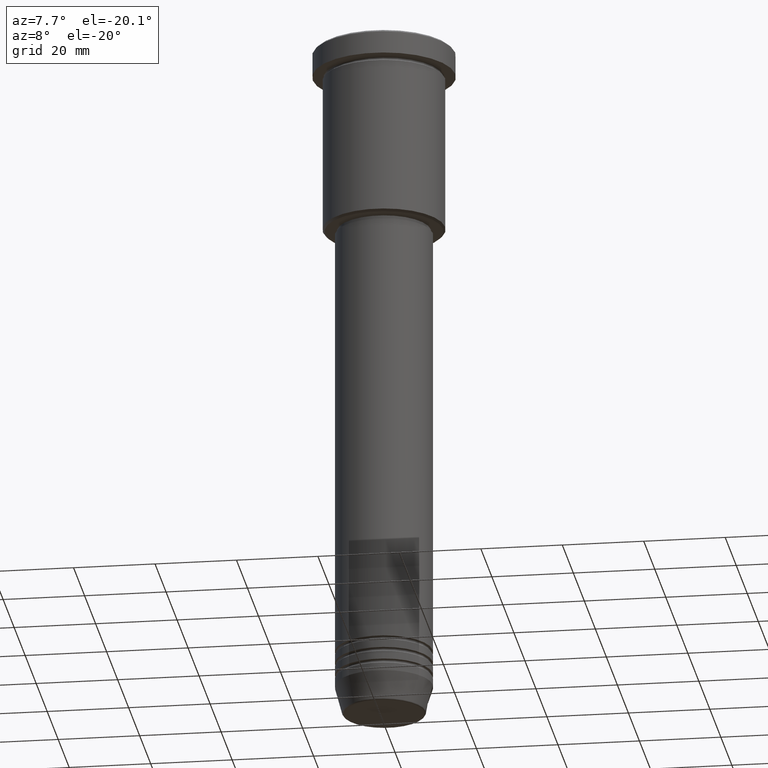
[diagram: clean part render]
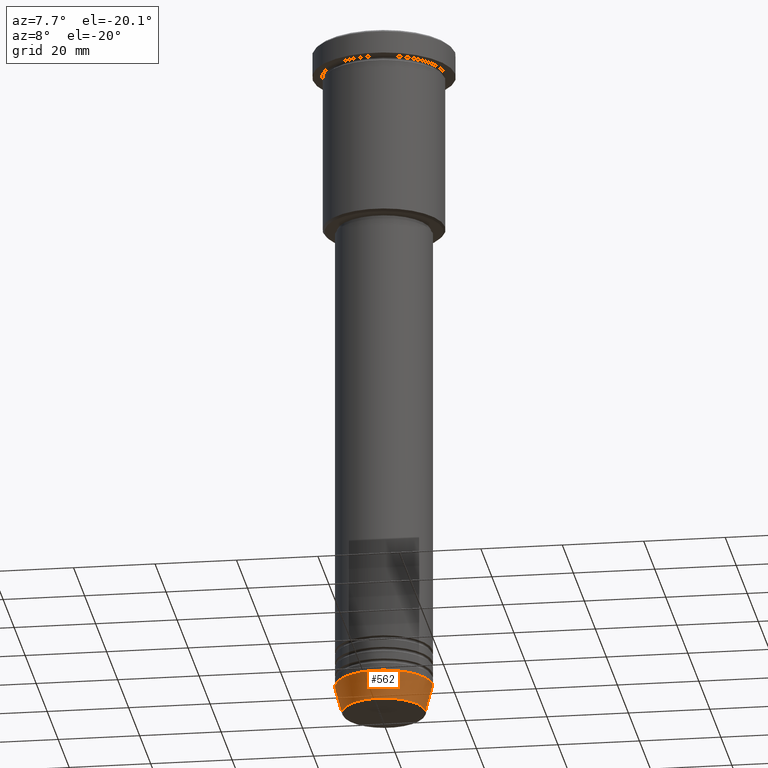
[diagram: same view with one face highlighted and labeled with its STEP entity id]
A machine part, auxiliary view. The second image highlights one B-rep face of the part: STEP entity #562.
In plain terms, the highlighted conical surface has half-angle 15 deg.
Its self-contained STEP definition (entity closure, byte-faithful):
#28 = ORIENTED_EDGE ( 'NONE', *, *, #823, .F. ) ;
#100 = CARTESIAN_POINT ( 'NONE',  ( 10.22365507213719660, 0.000000000000000000, -170.6294095225512706 ) ) ;
#112 = DIRECTION ( 'NONE',  ( -0.2588190451025213501, 3.169619151431772337E-17, 0.9659258262890680902 ) ) ;
#150 = CARTESIAN_POINT ( 'NONE',  ( -10.22365507213719837, 1.360806402472383336E-15, -170.6294095225512706 ) ) ;
#196 = DIRECTION ( 'NONE',  ( -0.000000000000000000, -0.000000000000000000, 1.000000000000000000 ) ) ;
#209 = CARTESIAN_POINT ( 'NONE',  ( -12.00000000000000000, 1.469576158976823947E-15, -164.0000000000000000 ) ) ;
#211 = CONICAL_SURFACE ( 'NONE', #548, 12.00000000000000000, 0.2617993877991500740 ) ;
#225 = CARTESIAN_POINT ( 'NONE',  ( 0.000000000000000000, 0.000000000000000000, -164.0000000000000000 ) ) ;
#241 = ORIENTED_EDGE ( 'NONE', *, *, #366, .F. ) ;
#317 = EDGE_CURVE ( 'NONE', #849, #836, #797, .T. ) ;
#352 = AXIS2_PLACEMENT_3D ( 'NONE', #225, #196, #825 ) ;
#366 = EDGE_CURVE ( 'NONE', #1038, #376, #909, .T. ) ;
#376 = VERTEX_POINT ( 'NONE', #742 ) ;
#426 = CARTESIAN_POINT ( 'NONE',  ( 0.000000000000000000, 0.000000000000000000, -164.0000000000000000 ) ) ;
#443 = DIRECTION ( 'NONE',  ( 1.000000000000000000, 0.000000000000000000, 0.000000000000000000 ) ) ;
#472 = EDGE_CURVE ( 'NONE', #836, #376, #771, .T. ) ;
#515 = DIRECTION ( 'NONE',  ( -0.000000000000000000, -0.000000000000000000, 1.000000000000000000 ) ) ;
#524 = CARTESIAN_POINT ( 'NONE',  ( -12.00000000000000000, 1.469576158976823947E-15, -164.0000000000000000 ) ) ;
#548 = AXIS2_PLACEMENT_3D ( 'NONE', #426, #515, #443 ) ;
#562 = ADVANCED_FACE ( 'NONE', ( #905 ), #211, .T. ) ;
#646 = ORIENTED_EDGE ( 'NONE', *, *, #472, .T. ) ;
#685 = DIRECTION ( 'NONE',  ( 1.000000000000000000, 0.000000000000000000, 0.000000000000000000 ) ) ;
#697 = DIRECTION ( 'NONE',  ( -0.000000000000000000, -0.000000000000000000, 1.000000000000000000 ) ) ;
#742 = CARTESIAN_POINT ( 'NONE',  ( 12.00000000000000000, 0.000000000000000000, -164.0000000000000000 ) ) ;
#771 = LINE ( 'NONE', #1050, #1064 ) ;
#797 = CIRCLE ( 'NONE', #967, 10.22365507213719660 ) ;
#814 = VECTOR ( 'NONE', #112, 1000.000000000000000 ) ;
#823 = EDGE_CURVE ( 'NONE', #849, #1038, #1181, .T. ) ;
#825 = DIRECTION ( 'NONE',  ( 1.000000000000000000, 0.000000000000000000, 0.000000000000000000 ) ) ;
#836 = VERTEX_POINT ( 'NONE', #100 ) ;
#849 = VERTEX_POINT ( 'NONE', #150 ) ;
#867 = DIRECTION ( 'NONE',  ( 0.2588190451025213501, 0.000000000000000000, 0.9659258262890680902 ) ) ;
#905 = FACE_OUTER_BOUND ( 'NONE', #1017, .T. ) ;
#909 = CIRCLE ( 'NONE', #352, 12.00000000000000000 ) ;
#967 = AXIS2_PLACEMENT_3D ( 'NONE', #1041, #697, #685 ) ;
#1002 = ORIENTED_EDGE ( 'NONE', *, *, #317, .T. ) ;
#1017 = EDGE_LOOP ( 'NONE', ( #28, #1002, #646, #241 ) ) ;
#1038 = VERTEX_POINT ( 'NONE', #524 ) ;
#1041 = CARTESIAN_POINT ( 'NONE',  ( 0.000000000000000000, 0.000000000000000000, -170.6294095225512706 ) ) ;
#1050 = CARTESIAN_POINT ( 'NONE',  ( 12.00000000000000000, 0.000000000000000000, -164.0000000000000000 ) ) ;
#1064 = VECTOR ( 'NONE', #867, 1000.000000000000000 ) ;
#1181 = LINE ( 'NONE', #209, #814 ) ;